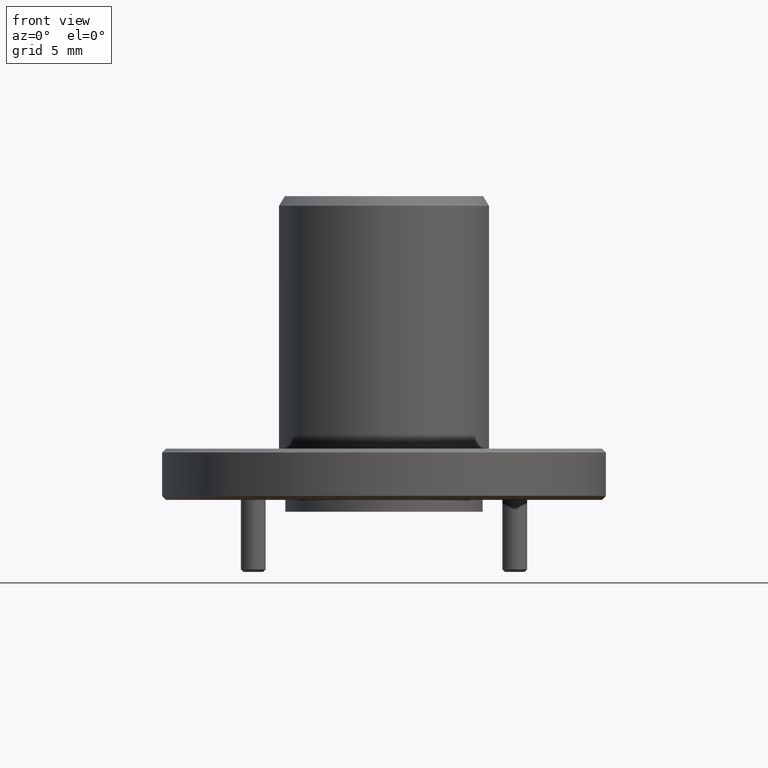
[diagram: clean part render]
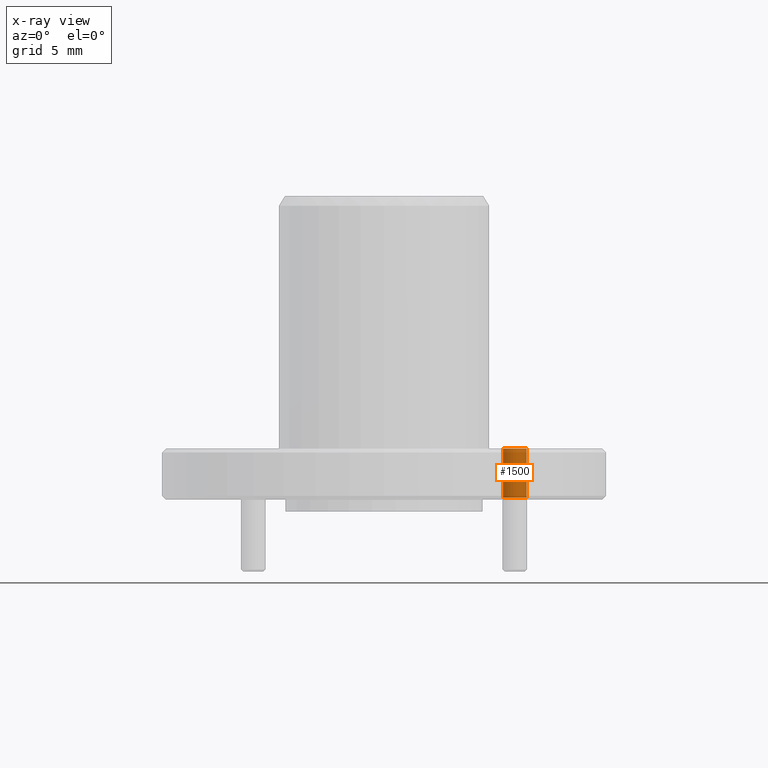
[diagram: x-ray — body ghosted, one internal face saturated and labeled with its STEP entity id]
A machine part, front view, then the same camera in x-ray: the body is ghosted and one INTERNAL B-rep face — a face not visible from any outside direction — is saturated and labeled: STEP entity #1500.
In plain terms, the highlighted cylindrical surface (edge-blend (fillet) strip) has radius 0.7557 mm, axis along (-0, -0, -1).
Its self-contained STEP definition (entity closure, byte-faithful):
#21 = DIRECTION ( 'NONE',  ( -1.000000000000000000, 0.0000000000000000000, 0.0000000000000000000 ) ) ;
#24 = AXIS2_PLACEMENT_3D ( 'NONE', #1449, #666, #927 ) ;
#34 = EDGE_CURVE ( 'NONE', #1419, #1029, #1482, .T. ) ;
#68 = AXIS2_PLACEMENT_3D ( 'NONE', #1393, #1859, #21 ) ;
#139 = VERTEX_POINT ( 'NONE', #1132 ) ;
#186 = CARTESIAN_POINT ( 'NONE',  ( 0.4124803410488044900, 0.8637029388478925100, 0.3305771406262704700 ) ) ;
#191 = VERTEX_POINT ( 'NONE', #186 ) ;
#260 = ORIENTED_EDGE ( 'NONE', *, *, #34, .F. ) ;
#261 = EDGE_CURVE ( 'NONE', #139, #1419, #1246, .T. ) ;
#280 = CARTESIAN_POINT ( 'NONE',  ( 0.3529803410488044900, 0.8637029388478925100, 0.3253271406262704400 ) ) ;
#405 = LINE ( 'NONE', #1517, #576 ) ;
#576 = VECTOR ( 'NONE', #1687, 39.37007874015748100 ) ;
#666 = DIRECTION ( 'NONE',  ( -0.0000000000000000000, -0.0000000000000000000, -1.000000000000000000 ) ) ;
#700 = CIRCLE ( 'NONE', #24, 0.02975000000000000200 ) ;
#715 = AXIS2_PLACEMENT_3D ( 'NONE', #1369, #1844, #1365 ) ;
#776 = CARTESIAN_POINT ( 'NONE',  ( 0.3529803410488044900, 0.8637029388478925100, 0.4553271406262703900 ) ) ;
#926 = ORIENTED_EDGE ( 'NONE', *, *, #261, .F. ) ;
#927 = DIRECTION ( 'NONE',  ( -1.000000000000000000, 0.0000000000000000000, 0.0000000000000000000 ) ) ;
#966 = FACE_OUTER_BOUND ( 'NONE', #1741, .T. ) ;
#1029 = VERTEX_POINT ( 'NONE', #1360 ) ;
#1037 = EDGE_CURVE ( 'NONE', #139, #191, #405, .T. ) ;
#1062 = ORIENTED_EDGE ( 'NONE', *, *, #1312, .T. ) ;
#1132 = CARTESIAN_POINT ( 'NONE',  ( 0.4124803410488044900, 0.8637029388478925100, 0.4553271406262703900 ) ) ;
#1239 = DIRECTION ( 'NONE',  ( -0.0000000000000000000, -0.0000000000000000000, -1.000000000000000000 ) ) ;
#1246 = CIRCLE ( 'NONE', #715, 0.02975000000000000200 ) ;
#1312 = EDGE_CURVE ( 'NONE', #191, #1029, #700, .T. ) ;
#1329 = VECTOR ( 'NONE', #1239, 39.37007874015748100 ) ;
#1360 = CARTESIAN_POINT ( 'NONE',  ( 0.3529803410488044900, 0.8637029388478925100, 0.3305771406262704700 ) ) ;
#1365 = DIRECTION ( 'NONE',  ( -1.000000000000000000, 0.0000000000000000000, 0.0000000000000000000 ) ) ;
#1369 = CARTESIAN_POINT ( 'NONE',  ( 0.3827303410488044900, 0.8637029388478925100, 0.4553271406262703900 ) ) ;
#1393 = CARTESIAN_POINT ( 'NONE',  ( 0.3827303410488044900, 0.8637029388478925100, 0.3253271406262704400 ) ) ;
#1419 = VERTEX_POINT ( 'NONE', #776 ) ;
#1449 = CARTESIAN_POINT ( 'NONE',  ( 0.3827303410488044900, 0.8637029388478925100, 0.3305771406262704700 ) ) ;
#1482 = LINE ( 'NONE', #280, #1329 ) ;
#1500 = ADVANCED_FACE ( 'NONE', ( #966 ), #1643, .F. ) ;
#1517 = CARTESIAN_POINT ( 'NONE',  ( 0.4124803410488044900, 0.8637029388478925100, 0.3253271406262704400 ) ) ;
#1643 = CYLINDRICAL_SURFACE ( 'NONE', #68, 0.02975000000000000200 ) ;
#1687 = DIRECTION ( 'NONE',  ( -0.0000000000000000000, -0.0000000000000000000, -1.000000000000000000 ) ) ;
#1741 = EDGE_LOOP ( 'NONE', ( #926, #1765, #1062, #260 ) ) ;
#1765 = ORIENTED_EDGE ( 'NONE', *, *, #1037, .T. ) ;
#1844 = DIRECTION ( 'NONE',  ( 0.0000000000000000000, 0.0000000000000000000, -1.000000000000000000 ) ) ;
#1859 = DIRECTION ( 'NONE',  ( -0.0000000000000000000, -0.0000000000000000000, -1.000000000000000000 ) ) ;